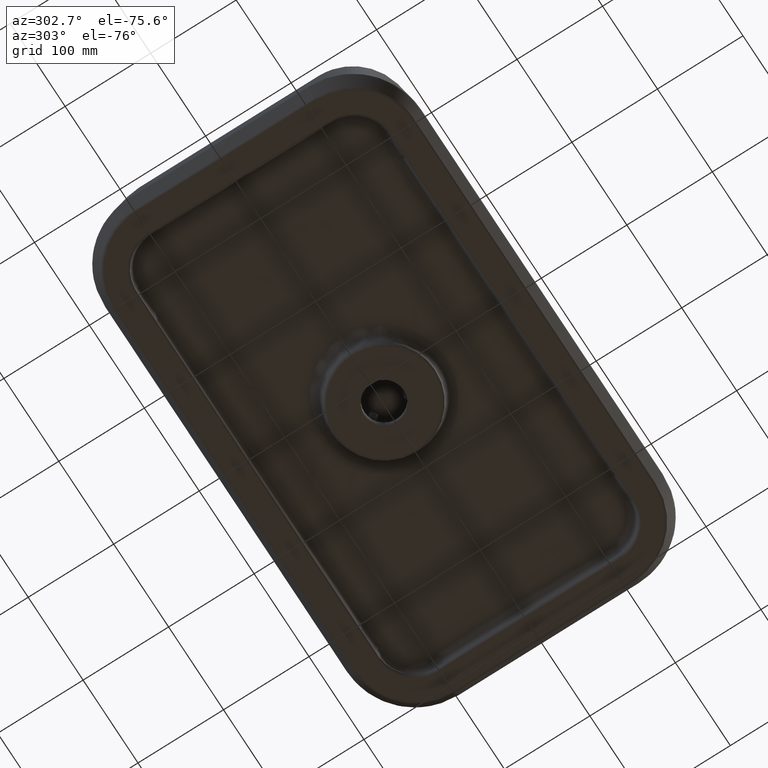
[diagram: clean part render]
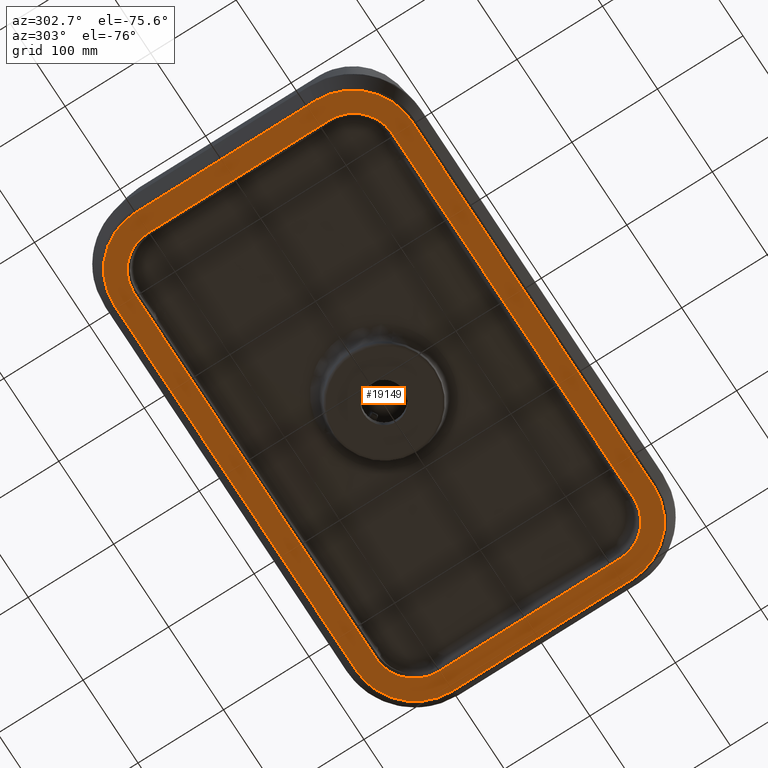
[diagram: same view with one face highlighted and labeled with its STEP entity id]
A machine part, auxiliary view. The second image highlights one B-rep face of the part: STEP entity #19149.
In plain terms, the highlighted planar face has unit normal (0, 0, -1).
Its self-contained STEP definition (entity closure, byte-faithful):
#5 = LINE ( 'NONE', #1615, #17222 ) ;
#6 = LINE ( 'NONE', #22890, #14060 ) ;
#140 = CARTESIAN_POINT ( 'NONE',  ( 613.7626360544778663, 305.0000000000000000, -20.00000000000000000 ) ) ;
#149 = EDGE_CURVE ( 'NONE', #7772, #927, #8166, .T. ) ;
#176 = CARTESIAN_POINT ( 'NONE',  ( 583.0147691637880598, 362.8739811818580847, -20.00000000000000000 ) ) ;
#183 = VERTEX_POINT ( 'NONE', #8693 ) ;
#206 = CARTESIAN_POINT ( 'NONE',  ( 56.03823013872320757, 46.03822808055880955, -20.00000000000000000 ) ) ;
#283 = LINE ( 'NONE', #5846, #23505 ) ;
#360 = CARTESIAN_POINT ( 'NONE',  ( 589.5839956566380806, 93.63527356781048638, -20.00000000000000355 ) ) ;
#365 = CARTESIAN_POINT ( 'NONE',  ( 545.4447451401179023, 350.5620847834420033, -20.00000000000000000 ) ) ;
#432 = LINE ( 'NONE', #4019, #12558 ) ;
#439 = CARTESIAN_POINT ( 'NONE',  ( 60.69477319976842722, 88.66360344336487742, -19.99999999999999289 ) ) ;
#481 = CARTESIAN_POINT ( 'NONE',  ( 558.3332692224628317, 348.5938984858630079, -20.00000000000000355 ) ) ;
#562 = CARTESIAN_POINT ( 'NONE',  ( 62.95099378957590375, 78.98278400710603364, -20.00000000000000355 ) ) ;
#599 = CARTESIAN_POINT ( 'NONE',  ( 103.4400332919218641, 49.45443826039982582, -20.00000000000000000 ) ) ;
#609 = CARTESIAN_POINT ( 'NONE',  ( 562.3386455256970748, 347.1381676650493091, -19.99999999999999289 ) ) ;
#676 = VECTOR ( 'NONE', #22454, 1000.000000000000000 ) ;
#696 = EDGE_CURVE ( 'NONE', #7826, #1888, #8471, .T. ) ;
#705 = CARTESIAN_POINT ( 'NONE',  ( 105.1823785617805527, 49.43701052263033802, -20.00000000000000000 ) ) ;
#768 = CARTESIAN_POINT ( 'NONE',  ( 74.57117323626754057, 338.6974198126209217, -19.99999999999999645 ) ) ;
#812 = VERTEX_POINT ( 'NONE', #24207 ) ;
#927 = VERTEX_POINT ( 'NONE', #4163 ) ;
#959 = VECTOR ( 'NONE', #5837, 1000.000000000000114 ) ;
#1101 = CARTESIAN_POINT ( 'NONE',  ( 547.1387985436019790, 49.48003336681029651, -20.00000000000000000 ) ) ;
#1129 = CARTESIAN_POINT ( 'NONE',  ( 572.1712172596033952, 58.55412363454011171, -19.99999999999999645 ) ) ;
#1249 = B_SPLINE_CURVE_WITH_KNOTS ( 'NONE', 3,
 ( #9352, #20732, #14568, #22590, #13189, #18396, #16546, #24080, #13810, #20977, #17526, #15552, #11837, #2427, #19369, #439, #21100, #4399, #22959, #6118, #562, #9980, #5990, #19244, #5750, #8115, #11959, #4025, #2301, #15678, #9594, #23214, #6249, #21232, #9856, #11577, #13681, #11453, #13313, #17271 ),
 .UNSPECIFIED., .F., .F.,
 ( 4, 1, 1, 1, 1, 1, 1, 2, 2, 2, 2, 2, 2, 2, 2, 2, 2, 2, 2, 2, 2, 2, 4 ),
 ( 0.0000000000000000000, 0.007812500000060999816, 0.01171875000009119441, 0.01367187500010587711, 0.01464843750011271019, 0.01513671875011555687, 0.01538085937511637045, 0.01550292968761677811, 0.01562500000011718404, 0.03125000000011544238, 0.06250000000011134149, 0.1250000000001037781, 0.1875000000000962008, 0.2500000000000886513, 0.3750000000000745515, 0.4375000000000671130, 0.5000000000000596190, 0.5625000000000521805, 0.6250000000000447420, 0.7500000000000303091, 0.8125000000000228706, 0.8750000000000155431, 1.000000000000000000 ),
 .UNSPECIFIED. ) ;
#1364 = CARTESIAN_POINT ( 'NONE',  ( 60.41589176227093105, 306.5257380026108649, -20.00000000000000355 ) ) ;
#1398 = DIRECTION ( 'NONE',  ( 1.000000000000000000, -0.0000000000000000000, 0.0000000000000000000 ) ) ;
#1439 = ORIENTED_EDGE ( 'NONE', *, *, #12215, .T. ) ;
#1493 = CARTESIAN_POINT ( 'NONE',  ( 575.4277908584463148, 61.30258015183713383, -19.99999999999999645 ) ) ;
#1615 = CARTESIAN_POINT ( 'NONE',  ( 36.23736394552250317, 24.32615316309999898, -20.00000000000000000 ) ) ;
#1640 = B_SPLINE_CURVE_WITH_KNOTS ( 'NONE', 3,
 ( #11701, #4020, #18989, #13309 ),
 .UNSPECIFIED., .F., .F.,
 ( 4, 4 ),
 ( 0.0000000000000000000, 1.000000000000000000 ),
 .UNSPECIFIED. ) ;
#1683 = VERTEX_POINT ( 'NONE', #11872 ) ;
#1724 = CARTESIAN_POINT ( 'NONE',  ( 60.41856827181106127, 306.7647217262994559, -20.00000000000000000 ) ) ;
#1888 = VERTEX_POINT ( 'NONE', #10625 ) ;
#1951 = VERTEX_POINT ( 'NONE', #17411 ) ;
#2034 = CARTESIAN_POINT ( 'NONE',  ( 557.9602275777641580, 372.9459035821819839, -20.00000000000000000 ) ) ;
#2223 = CARTESIAN_POINT ( 'NONE',  ( 589.5837868432029154, 93.59373228217225460, -20.00000000000000000 ) ) ;
#2301 = CARTESIAN_POINT ( 'NONE',  ( 74.57025903373428832, 61.30332191015848764, -20.00000000000000000 ) ) ;
#2321 = CARTESIAN_POINT ( 'NONE',  ( 104.5542184730190058, 49.43791479910009912, -20.00000000000000000 ) ) ;
#2348 = CARTESIAN_POINT ( 'NONE',  ( 572.1733394006009803, 341.4442451993540999, -19.99999999999999645 ) ) ;
#2427 = CARTESIAN_POINT ( 'NONE',  ( 60.47049181558218578, 91.50153117052238372, -19.99999999999999289 ) ) ;
#2472 = DIRECTION ( 'NONE',  ( -1.000000000000000000, 0.0000000000000000000, -0.0000000000000000000 ) ) ;
#2580 = CARTESIAN_POINT ( 'NONE',  ( 102.8599389428290038, 49.48005182034100358, -20.00000000000000000 ) ) ;
#2589 = CARTESIAN_POINT ( 'NONE',  ( 549.9914510293451713, 350.3940013736541914, -19.99999999999999645 ) ) ;
#2599 = B_SPLINE_CURVE_WITH_KNOTS ( 'NONE', 3,
 ( #8345, #4619, #20204, #16022, #23558, #10802, #23439, #6591, #14159, #22668, #3741 ),
 .UNSPECIFIED., .F., .F.,
 ( 4, 1, 1, 1, 1, 1, 1, 1, 4 ),
 ( 0.0000000000000000000, 0.1199897986799775135, 0.2399795973599529175, 0.3699897986836335195, 0.5000000000073141493, 0.6300102013236816845, 0.7600204026401397028, 0.8800102013200246098, 1.000000000000000000 ),
 .UNSPECIFIED. ) ;
#2714 = CARTESIAN_POINT ( 'NONE',  ( 589.5811555713996768, 306.7026026648503034, -20.00000000000000355 ) ) ;
#2923 = ORIENTED_EDGE ( 'NONE', *, *, #21751, .T. ) ;
#2965 = CARTESIAN_POINT ( 'NONE',  ( 60.41439796434210052, 199.9999997651979982, -20.00000000000000000 ) ) ;
#3026 = VECTOR ( 'NONE', #1398, 1000.000000000000000 ) ;
#3111 = CARTESIAN_POINT ( 'NONE',  ( 585.4873278487606285, 74.99639444750997086, -20.00000000000000355 ) ) ;
#3136 = CARTESIAN_POINT ( 'NONE',  ( 47.12601881814089921, 343.0147691637860135, -20.00000000000000000 ) ) ;
#3227 = CARTESIAN_POINT ( 'NONE',  ( 65.79680951384015941, 327.5380912044108186, -20.00000000000000000 ) ) ;
#3232 = CARTESIAN_POINT ( 'NONE',  ( 587.7298393776053445, 81.00394722196595865, -20.00000000000000355 ) ) ;
#3259 = LINE ( 'NONE', #9190, #3026 ) ;
#3467 = CARTESIAN_POINT ( 'NONE',  ( 60.41467822480342420, 306.0003904891459001, -20.00000000000000355 ) ) ;
#3580 = CARTESIAN_POINT ( 'NONE',  ( 60.41447967461999724, 305.6547173305320371, -20.00000000000000000 ) ) ;
#3702 = CARTESIAN_POINT ( 'NONE',  ( 60.41694552382184469, 306.6359322093080095, -19.99999999999999645 ) ) ;
#3713 = DIRECTION ( 'NONE',  ( -1.000000000000000000, 0.0000000000000000000, -0.0000000000000000000 ) ) ;
#3741 = CARTESIAN_POINT ( 'NONE',  ( 613.7626360544778663, 94.99999999999980105, -20.00000000000000000 ) ) ;
#3835 = CARTESIAN_POINT ( 'NONE',  ( 589.5839763197822094, 93.63101607499591239, -20.00000000000000000 ) ) ;
#3848 = EDGE_CURVE ( 'NONE', #13077, #24438, #8224, .T. ) ;
#3896 = EDGE_CURVE ( 'NONE', #8376, #17302, #2599, .T. ) ;
#4019 = CARTESIAN_POINT ( 'NONE',  ( 613.7626360544778663, 24.32615316309999898, -20.00000000000000000 ) ) ;
#4020 = CARTESIAN_POINT ( 'NONE',  ( 544.8065468622293110, 49.43697041884718857, -20.00000000000000000 ) ) ;
#4025 = CARTESIAN_POINT ( 'NONE',  ( 73.54397826831853990, 62.28893987878601024, -20.00000000000000000 ) ) ;
#4028 = EDGE_CURVE ( 'NONE', #14479, #7695, #13268, .T. ) ;
#4163 = CARTESIAN_POINT ( 'NONE',  ( 104.5547813967269946, 350.5620908997079823, -20.00000000000000000 ) ) ;
#4241 = CARTESIAN_POINT ( 'NONE',  ( 104.5547813967269946, 350.5620908997079823, -20.00000000000000000 ) ) ;
#4321 = CARTESIAN_POINT ( 'NONE',  ( 573.2871456177506388, 340.5637968229781904, -20.00000000000000355 ) ) ;
#4399 = CARTESIAN_POINT ( 'NONE',  ( 61.39588280572308321, 84.45018640027178947, -19.99999999999999645 ) ) ;
#4423 = CARTESIAN_POINT ( 'NONE',  ( 543.9059400888739901, 350.5632386922230808, -20.00000000000000000 ) ) ;
#4441 = CARTESIAN_POINT ( 'NONE',  ( 587.0479698923234082, 321.0172157027465119, -20.00000000000000000 ) ) ;
#4545 = ORIENTED_EDGE ( 'NONE', *, *, #7269, .T. ) ;
#4568 = ORIENTED_EDGE ( 'NONE', *, *, #149, .T. ) ;
#4619 = CARTESIAN_POINT ( 'NONE',  ( 549.3200908222941052, 26.23711227434399973, -20.00000000000000000 ) ) ;
#4678 = CARTESIAN_POINT ( 'NONE',  ( 588.2805517345620956, 316.9342701747619913, -19.99999999999999289 ) ) ;
#4794 = CARTESIAN_POINT ( 'NONE',  ( 547.1390246213589990, 350.5199477664450001, -20.00000000000000000 ) ) ;
#4856 = CARTESIAN_POINT ( 'NONE',  ( 36.23736394552242501, 304.9999999999989768, -20.00000000000000000 ) ) ;
#4951 = CARTESIAN_POINT ( 'NONE',  ( 80.15675713217193277, 343.0905024221627286, -20.00000000000000000 ) ) ;
#4956 = CARTESIAN_POINT ( 'NONE',  ( 547.1387985436019790, 49.48003336681029651, -20.00000000000000000 ) ) ;
#5076 = CARTESIAN_POINT ( 'NONE',  ( 579.3978508450660456, 65.39935756678306689, -20.00000000000001066 ) ) ;
#5188 = CARTESIAN_POINT ( 'NONE',  ( 60.42962908349420559, 307.3420075733504291, -19.99999999999999645 ) ) ;
#5193 = CARTESIAN_POINT ( 'NONE',  ( 564.9329804727343571, 54.04767584970393557, -20.00000000000000000 ) ) ;
#5225 = EDGE_CURVE ( 'NONE', #1888, #21067, #9645, .T. ) ;
#5235 = ORIENTED_EDGE ( 'NONE', *, *, #11636, .F. ) ;
#5310 = CARTESIAN_POINT ( 'NONE',  ( 60.54397161469027822, 309.5642800041508167, -19.99999999999999645 ) ) ;
#5317 = VERTEX_POINT ( 'NONE', #11167 ) ;
#5378 = CARTESIAN_POINT ( 'NONE',  ( 549.3201225636410072, 373.7629490522319884, -20.00000000000000000 ) ) ;
#5432 = CARTESIAN_POINT ( 'NONE',  ( 60.47488445004613311, 308.4996270138382783, -20.00000000000000355 ) ) ;
#5497 = CARTESIAN_POINT ( 'NONE',  ( 34.32615316309900777, 49.43676088892519971, -20.00000000000000000 ) ) ;
#5588 = DIRECTION ( 'NONE',  ( -9.812820980893993903E-06, 0.9999999999518542904, 0.0000000000000000000 ) ) ;
#5750 = CARTESIAN_POINT ( 'NONE',  ( 68.90995084144087457, 67.68314291164246299, -19.99999999999999645 ) ) ;
#5797 = CARTESIAN_POINT ( 'NONE',  ( 589.5413458917040543, 91.85355131502257109, -19.99999999999999645 ) ) ;
#5828 = CARTESIAN_POINT ( 'NONE',  ( 102.8601656069610186, 350.5199665108989961, -20.00000000000000000 ) ) ;
#5837 = DIRECTION ( 'NONE',  ( -7.733708421248975290E-07, -0.9999999999997009059, 0.0000000000000000000 ) ) ;
#5846 = CARTESIAN_POINT ( 'NONE',  ( 34.32615316309900777, 373.7626360544780368, -20.00000000000000000 ) ) ;
#5990 = CARTESIAN_POINT ( 'NONE',  ( 65.79581511898363999, 72.46363120402864411, -20.00000000000000355 ) ) ;
#6015 = CARTESIAN_POINT ( 'NONE',  ( 545.4447451401179023, 350.5620847834420033, -20.00000000000000000 ) ) ;
#6037 = CARTESIAN_POINT ( 'NONE',  ( 581.0890127959431766, 332.3168567829787889, -20.00000000000000000 ) ) ;
#6041 = CARTESIAN_POINT ( 'NONE',  ( 589.5693348935485574, 92.65799243432361720, -20.00000000000000355 ) ) ;
#6118 = CARTESIAN_POINT ( 'NONE',  ( 62.49562629189952645, 80.33289986533625893, -20.00000000000000000 ) ) ;
#6168 = CARTESIAN_POINT ( 'NONE',  ( 589.5675680610244171, 307.4330154708379723, -20.00000000000000355 ) ) ;
#6224 = DIRECTION ( 'NONE',  ( -1.000000000000000000, 0.0000000000000000000, -0.0000000000000000000 ) ) ;
#6249 = CARTESIAN_POINT ( 'NONE',  ( 83.76972260673596793, 54.64002062088189859, -20.00000000000000000 ) ) ;
#6269 = CARTESIAN_POINT ( 'NONE',  ( 545.3295200727761767, 350.5626044230095886, -20.00000000000000000 ) ) ;
#6410 = CARTESIAN_POINT ( 'NONE',  ( 568.6895927775644850, 343.9357313269997576, -20.00000000000000000 ) ) ;
#6522 = ORIENTED_EDGE ( 'NONE', *, *, #7513, .T. ) ;
#6591 = CARTESIAN_POINT ( 'NONE',  ( 609.2135692150501427, 69.19042335379131714, -20.00000000000000000 ) ) ;
#6633 = EDGE_CURVE ( 'NONE', #812, #14479, #12171, .T. ) ;
#6705 = CARTESIAN_POINT ( 'NONE',  ( 92.03977259367870545, 372.9459273471940151, -20.00000000000000000 ) ) ;
#6805 = CARTESIAN_POINT ( 'NONE',  ( 91.64462753136601236, 348.6591257687158532, -20.00000000000000000 ) ) ;
#6849 = B_SPLINE_CURVE_WITH_KNOTS ( 'NONE', 3,
 ( #24032, #9068, #6705, #6949, #21945, #23672, #3136, #24149, #12774, #14279, #4856 ),
 .UNSPECIFIED., .F., .F.,
 ( 4, 1, 1, 1, 1, 1, 1, 1, 4 ),
 ( 0.0000000000000000000, 0.1199897986799537269, 0.2399795973598990162, 0.3699897986762811231, 0.4999999999926716954, 0.6300102013163868531, 0.7600204026401009560, 0.8800102013200546969, 1.000000000000000000 ),
 .UNSPECIFIED. ) ;
#6926 = CARTESIAN_POINT ( 'NONE',  ( 584.2021545337493080, 72.46190878985117934, -20.00000000000000000 ) ) ;
#6930 = B_SPLINE_CURVE_WITH_KNOTS ( 'NONE', 3,
 ( #17323, #17451, #8174, #365 ),
 .UNSPECIFIED., .F., .F.,
 ( 4, 4 ),
 ( 0.0000000000000000000, 1.000000000000000000 ),
 .UNSPECIFIED. ) ;
#6949 = CARTESIAN_POINT ( 'NONE',  ( 79.19043508401730946, 369.2135466405110833, -20.00000000000000355 ) ) ;
#6996 = ORIENTED_EDGE ( 'NONE', *, *, #18691, .T. ) ;
#7039 = CARTESIAN_POINT ( 'NONE',  ( 68.85524087188710496, 332.3582380978734818, -20.00000000000000000 ) ) ;
#7138 = CARTESIAN_POINT ( 'NONE',  ( 545.4441827580590143, 49.43790897404760187, -20.00000000000000000 ) ) ;
#7159 = CARTESIAN_POINT ( 'NONE',  ( 60.41496831768338893, 306.3647264408321007, -20.00000000000000355 ) ) ;
#7164 = CARTESIAN_POINT ( 'NONE',  ( 576.4558058863591441, 62.29001059415378450, -20.00000000000000355 ) ) ;
#7269 = EDGE_CURVE ( 'NONE', #14812, #183, #21971, .T. ) ;
#7284 = CARTESIAN_POINT ( 'NONE',  ( 61.41286961462085259, 315.5470390496258801, -20.00000000000000355 ) ) ;
#7410 = CARTESIAN_POINT ( 'NONE',  ( 62.26912463703408918, 318.9960527840703435, -20.00000000000000000 ) ) ;
#7415 = CARTESIAN_POINT ( 'NONE',  ( 613.7626360544778663, 94.99999999999980105, -20.00000000000000000 ) ) ;
#7475 = CARTESIAN_POINT ( 'NONE',  ( 593.9617698600401354, 353.9617719205280650, -20.00000000000000000 ) ) ;
#7493 = VERTEX_POINT ( 'NONE', #11982 ) ;
#7513 = EDGE_CURVE ( 'NONE', #15937, #11312, #11934, .T. ) ;
#7530 = CARTESIAN_POINT ( 'NONE',  ( 60.43786937678639504, 307.6095695335503137, -20.00000000000000000 ) ) ;
#7531 = CARTESIAN_POINT ( 'NONE',  ( 589.5843592207321535, 305.9269435485420559, -19.99999999999999289 ) ) ;
#7535 = CARTESIAN_POINT ( 'NONE',  ( 589.5797558315437072, 93.18986185098968633, -20.00000000000000000 ) ) ;
#7561 = CARTESIAN_POINT ( 'NONE',  ( 36.23736394552242501, 304.9999999999989768, -20.00000000000000000 ) ) ;
#7653 = CARTESIAN_POINT ( 'NONE',  ( 589.5830722124749173, 93.47426200085570258, -20.00000000000000355 ) ) ;
#7687 = CARTESIAN_POINT ( 'NONE',  ( 103.4408550980522392, 350.5456033456010800, -20.00000000000000000 ) ) ;
#7695 = VERTEX_POINT ( 'NONE', #21472 ) ;
#7719 = CARTESIAN_POINT ( 'NONE',  ( 570.8095766458429807, 369.2135692153399873, -20.00000000000000000 ) ) ;
#7752 = CARTESIAN_POINT ( 'NONE',  ( 66.98523083832789382, 37.12601881663990611, -20.00000000000000000 ) ) ;
#7772 = VERTEX_POINT ( 'NONE', #13803 ) ;
#7783 = CARTESIAN_POINT ( 'NONE',  ( 589.5844842979349778, 94.34528267559710457, -20.00000000000000000 ) ) ;
#7826 = VERTEX_POINT ( 'NONE', #22951 ) ;
#7878 = CARTESIAN_POINT ( 'NONE',  ( 36.23711227434409921, 90.67990917770539738, -20.00000000000000355 ) ) ;
#7943 = B_SPLINE_CURVE_WITH_KNOTS ( 'NONE', 3,
 ( #18794, #7531, #13974, #9898, #11879, #21401, #2714, #19413, #23006, #23376, #19782, #21518, #6168, #15471, #13727, #8283, #15597, #8162, #4678, #19289, #4441, #10022, #19536, #12001, #6037, #17810, #13609, #21645, #12247, #4321, #2348, #6410, #23496, #609, #21275, #481, #14102, #9775, #2589, #10261 ),
 .UNSPECIFIED., .F., .F.,
 ( 4, 1, 1, 1, 1, 1, 1, 2, 2, 2, 2, 2, 2, 2, 2, 2, 2, 2, 2, 2, 2, 2, 4 ),
 ( 0.0000000000000000000, 0.007812500000136146303, 0.01171875000020422726, 0.01367187500023824519, 0.01464843750025521946, 0.01513671875026142283, 0.01538085937526701558, 0.01550292968776723242, 0.01562500000026744579, 0.03125000000026319918, 0.06250000000025469904, 0.1250000000002377265, 0.1875000000002207123, 0.2500000000002037259, 0.3750000000001697531, 0.4375000000001517675, 0.5000000000001337819, 0.5625000000001156852, 0.6250000000000976996, 0.7500000000000655032, 0.8125000000000490719, 0.8750000000000325295, 1.000000000000000000 ),
 .UNSPECIFIED. ) ;
#7976 = DIRECTION ( 'NONE',  ( 0.0000000000000000000, 1.000000000000000000, 0.0000000000000000000 ) ) ;
#8039 = EDGE_CURVE ( 'NONE', #11312, #7772, #6, .T. ) ;
#8115 = CARTESIAN_POINT ( 'NONE',  ( 70.65535708016415128, 65.44128534765191318, -20.00000000000000000 ) ) ;
#8153 = CARTESIAN_POINT ( 'NONE',  ( 104.5542184730190058, 49.43791479910009912, -20.00000000000000000 ) ) ;
#8162 = CARTESIAN_POINT ( 'NONE',  ( 588.6030808947995183, 315.5498133130188876, -19.99999999999999289 ) ) ;
#8166 = B_SPLINE_CURVE_WITH_KNOTS ( 'NONE', 3,
 ( #12892, #20430, #23783, #20305 ),
 .UNSPECIFIED., .F., .F.,
 ( 4, 4 ),
 ( 0.0000000000000000000, 1.000000000000000000 ),
 .UNSPECIFIED. ) ;
#8174 = CARTESIAN_POINT ( 'NONE',  ( 545.9941704568809655, 350.5596069967885455, -20.00000000000000000 ) ) ;
#8207 = VERTEX_POINT ( 'NONE', #13738 ) ;
#8224 = LINE ( 'NONE', #23065, #10780 ) ;
#8258 = CARTESIAN_POINT ( 'NONE',  ( 104.6694435422335374, 49.43739515935531159, -20.00000000000000000 ) ) ;
#8283 = CARTESIAN_POINT ( 'NONE',  ( 589.3041905133688942, 311.3363962707633732, -19.99999999999999289 ) ) ;
#8345 = CARTESIAN_POINT ( 'NONE',  ( 544.9999999999998863, 26.23736394552249962, -20.00000000000000000 ) ) ;
#8376 = VERTEX_POINT ( 'NONE', #18423 ) ;
#8471 = B_SPLINE_CURVE_WITH_KNOTS ( 'NONE', 3,
 ( #2580, #599, #15952, #8153 ),
 .UNSPECIFIED., .F., .F.,
 ( 4, 4 ),
 ( 0.0000000000000000000, 1.000000000000000000 ),
 .UNSPECIFIED. ) ;
#8552 = ORIENTED_EDGE ( 'NONE', *, *, #3848, .T. ) ;
#8556 = CARTESIAN_POINT ( 'NONE',  ( 88.95916743158805673, 347.7316639359318629, -19.99999999999999645 ) ) ;
#8693 = CARTESIAN_POINT ( 'NONE',  ( 547.1387985436019790, 49.48003336681029651, -20.00000000000000000 ) ) ;
#8799 = CARTESIAN_POINT ( 'NONE',  ( 77.82774684785191255, 341.4458763188806643, -20.00000000000000000 ) ) ;
#8805 = CARTESIAN_POINT ( 'NONE',  ( 570.4322356521729489, 57.31051475429733699, -19.99999999999999645 ) ) ;
#8926 = CARTESIAN_POINT ( 'NONE',  ( 569.8422069831518684, 56.90949752371609094, -20.00000000000000000 ) ) ;
#8961 = CARTESIAN_POINT ( 'NONE',  ( 543.9059400888739901, 350.5632386922230808, -20.00000000000000000 ) ) ;
#9039 = CARTESIAN_POINT ( 'NONE',  ( 60.41497375376729195, 306.3661197526193973, -20.00000000000000000 ) ) ;
#9068 = CARTESIAN_POINT ( 'NONE',  ( 100.6799091778560182, 373.7628877258579791, -20.00000000000000000 ) ) ;
#9154 = CARTESIAN_POINT ( 'NONE',  ( 61.73561803170227336, 316.9322972744836875, -20.00000000000000000 ) ) ;
#9190 = CARTESIAN_POINT ( 'NONE',  ( 34.32615316309900777, 26.23736394552249962, -20.00000000000000000 ) ) ;
#9223 = CARTESIAN_POINT ( 'NONE',  ( 609.2135466405111401, 330.8095649159820368, -20.00000000000000000 ) ) ;
#9273 = CARTESIAN_POINT ( 'NONE',  ( 60.41503030350416736, 306.3775982307288928, -19.99999999999999645 ) ) ;
#9341 = CARTESIAN_POINT ( 'NONE',  ( 612.9459273471950382, 317.9602274063209961, -20.00000000000000000 ) ) ;
#9352 = CARTESIAN_POINT ( 'NONE',  ( 60.41448015074009703, 94.34564890064839915, -20.00000000000000000 ) ) ;
#9594 = CARTESIAN_POINT ( 'NONE',  ( 77.82562420034946626, 58.55575446308452570, -19.99999999999999645 ) ) ;
#9645 = B_SPLINE_CURVE_WITH_KNOTS ( 'NONE', 3,
 ( #2321, #8258, #705, #9874 ),
 .UNSPECIFIED., .F., .F.,
 ( 4, 4 ),
 ( 0.0000000000000000000, 1.000000000000000000 ),
 .UNSPECIFIED. ) ;
#9706 = B_SPLINE_CURVE_WITH_KNOTS ( 'NONE', 3,
 ( #4956, #18450, #22046, #10541, #12878, #5193, #18089, #11017, #8926, #8805, #1129, #12523, #1493, #7164, #5076, #20064, #6926, #3111, #10660, #3232, #14737, #20418, #16359, #12641, #20178, #19046, #17070, #13119, #5797, #9781, #6041, #16833, #11509, #7535, #19166, #15352, #7653, #2223, #21031, #3835, #11252, #17319, #360, #22884, #20906, #15106, #7783 ),
 .UNSPECIFIED., .F., .F.,
 ( 4, 2, 2, 1, 2, 2, 2, 2, 2, 2, 1, 2, 2, 2, 2, 2, 1, 1, 2, 2, 1, 1, 2, 2, 1, 1, 1, 4 ),
 ( 0.0000000000000000000, 0.1249999999999664158, 0.2499999999999328315, 0.3124999999999160671, 0.3437499999999096834, 0.3749999999999033551, 0.4374999999998905875, 0.4999999999998778755, 0.6249999999998561151, 0.7499999999998344657, 0.8124999999998236966, 0.8437499999998179234, 0.8749999999998121503, 0.9374999999998007150, 0.9531249999997979394, 0.9687499999997952749, 0.9765624999997938316, 0.9804687499997930544, 0.9824218749997928324, 0.9843749999997924993, 0.9882812499997910560, 0.9892578124997907230, 0.9895019531247907230, 0.9896240234372908340, 0.9897460937497909450, 0.9902343749997983835, 0.9921874999998384625, 1.000000000000000000 ),
 .UNSPECIFIED. ) ;
#9775 = CARTESIAN_POINT ( 'NONE',  ( 552.8047247318719428, 349.9966576614177711, -19.99999999999999645 ) ) ;
#9780 = DIRECTION ( 'NONE',  ( 0.0000000000000000000, 0.0000000000000000000, -1.000000000000000000 ) ) ;
#9781 = CARTESIAN_POINT ( 'NONE',  ( 589.5610946010195903, 92.39043047394414998, -20.00000000000000000 ) ) ;
#9856 = CARTESIAN_POINT ( 'NONE',  ( 88.98013937367247195, 52.33359397645791233, -20.00000000000000000 ) ) ;
#9874 = CARTESIAN_POINT ( 'NONE',  ( 106.0930235316600090, 49.43676088892519971, -20.00000000000000000 ) ) ;
#9898 = CARTESIAN_POINT ( 'NONE',  ( 589.5825789296077346, 306.5345521937173885, -20.00000000000000000 ) ) ;
#9980 = CARTESIAN_POINT ( 'NONE',  ( 64.51123637092133833, 74.99702080492345146, -20.00000000000000000 ) ) ;
#10022 = CARTESIAN_POINT ( 'NONE',  ( 585.4877272954524869, 325.0029789027215656, -19.99999999999999289 ) ) ;
#10035 = VERTEX_POINT ( 'NONE', #18824 ) ;
#10261 = CARTESIAN_POINT ( 'NONE',  ( 547.1390246213589990, 350.5199477664450001, -20.00000000000000000 ) ) ;
#10509 = CARTESIAN_POINT ( 'NONE',  ( 545.9932371281006454, 49.44035506666305224, -20.00000000000000000 ) ) ;
#10535 = CARTESIAN_POINT ( 'NONE',  ( 102.8601656069610186, 350.5199665108989961, -20.00000000000000000 ) ) ;
#10541 = CARTESIAN_POINT ( 'NONE',  ( 558.3543366091050757, 51.34087413906539155, -20.00000000000000000 ) ) ;
#10625 = CARTESIAN_POINT ( 'NONE',  ( 104.5542184730190058, 49.43791479910009912, -20.00000000000000000 ) ) ;
#10660 = CARTESIAN_POINT ( 'NONE',  ( 587.0481808407457720, 78.98258719385461291, -19.99999999999999289 ) ) ;
#10668 = DIRECTION ( 'NONE',  ( 4.008296512735216306E-07, 0.9999999999999196199, 0.0000000000000000000 ) ) ;
#10771 = CARTESIAN_POINT ( 'NONE',  ( 62.95078318149495544, 321.0174128105569480, -20.00000000000000000 ) ) ;
#10780 = VECTOR ( 'NONE', #11819, 1000.000000000000227 ) ;
#10802 = CARTESIAN_POINT ( 'NONE',  ( 593.9617719194419578, 46.03823013872219860, -20.00000000000000000 ) ) ;
#10823 = EDGE_CURVE ( 'NONE', #7493, #10035, #14365, .T. ) ;
#11017 = CARTESIAN_POINT ( 'NONE',  ( 568.6469100348657548, 56.13843204660608421, -20.00000000000000000 ) ) ;
#11106 = CARTESIAN_POINT ( 'NONE',  ( 92.03977242265261793, 27.05409641760350326, -20.00000000000000000 ) ) ;
#11128 = CARTESIAN_POINT ( 'NONE',  ( 60.45761808765733747, 308.1464486915577368, -20.00000000000000000 ) ) ;
#11133 = EDGE_CURVE ( 'NONE', #18278, #5317, #19655, .T. ) ;
#11167 = CARTESIAN_POINT ( 'NONE',  ( 545.0000000000019327, 373.7626360544780368, -20.00000000000000000 ) ) ;
#11252 = CARTESIAN_POINT ( 'NONE',  ( 589.5839902205489125, 93.63388025405932069, -19.99999999999999645 ) ) ;
#11312 = VERTEX_POINT ( 'NONE', #8961 ) ;
#11453 = CARTESIAN_POINT ( 'NONE',  ( 97.19423883546086529, 50.00334193969286645, -19.99999999999999645 ) ) ;
#11509 = CARTESIAN_POINT ( 'NONE',  ( 589.5783707858084881, 93.10140588009753060, -19.99999999999999289 ) ) ;
#11546 = LINE ( 'NONE', #17234, #959 ) ;
#11577 = CARTESIAN_POINT ( 'NONE',  ( 91.66569435232794660, 51.40610113079876697, -20.00000000000000355 ) ) ;
#11636 = EDGE_CURVE ( 'NONE', #21426, #7493, #5, .T. ) ;
#11701 = CARTESIAN_POINT ( 'NONE',  ( 543.9054890495749532, 49.43676057434070259, -20.00000000000000000 ) ) ;
#11715 = ORIENTED_EDGE ( 'NONE', *, *, #11133, .F. ) ;
#11800 = EDGE_CURVE ( 'NONE', #14688, #15937, #6930, .T. ) ;
#11819 = DIRECTION ( 'NONE',  ( 7.778799200140098213E-07, -0.9999999999996973532, 0.0000000000000000000 ) ) ;
#11837 = CARTESIAN_POINT ( 'NONE',  ( 60.43139566291292653, 92.56698424296271810, -20.00000000000000355 ) ) ;
#11872 = CARTESIAN_POINT ( 'NONE',  ( 102.8601656069610186, 350.5199665108989961, -20.00000000000000000 ) ) ;
#11879 = CARTESIAN_POINT ( 'NONE',  ( 589.5818040112561675, 306.6383532054238117, -20.00000000000000355 ) ) ;
#11934 = B_SPLINE_CURVE_WITH_KNOTS ( 'NONE', 3,
 ( #6015, #6269, #13831, #4423 ),
 .UNSPECIFIED., .F., .F.,
 ( 4, 4 ),
 ( 0.0000000000000000000, 1.000000000000000000 ),
 .UNSPECIFIED. ) ;
#11959 = CARTESIAN_POINT ( 'NONE',  ( 71.58041415944714458, 64.36429268659819058, -20.00000000000000355 ) ) ;
#11982 = CARTESIAN_POINT ( 'NONE',  ( 36.23736394552251028, 94.99999999999917577, -20.00000000000000000 ) ) ;
#12001 = CARTESIAN_POINT ( 'NONE',  ( 581.9079049553827190, 331.1535318365944249, -20.00000000000000355 ) ) ;
#12124 = CARTESIAN_POINT ( 'NONE',  ( 589.5845656446385874, 297.2911071200040851, -20.00000000000000000 ) ) ;
#12171 = LINE ( 'NONE', #21935, #15236 ) ;
#12215 = EDGE_CURVE ( 'NONE', #17828, #14812, #1640, .T. ) ;
#12247 = CARTESIAN_POINT ( 'NONE',  ( 575.4287045781786674, 338.6966777636856136, -20.00000000000000000 ) ) ;
#12512 = EDGE_LOOP ( 'NONE', ( #16278, #11715, #16843, #21838, #18217, #14864, #5235, #22290 ) ) ;
#12516 = CARTESIAN_POINT ( 'NONE',  ( 79.56672846262847543, 342.6894851944985021, -19.99999999999999645 ) ) ;
#12523 = CARTESIAN_POINT ( 'NONE',  ( 573.2862604080200981, 59.43544397273090141, -19.99999999999999645 ) ) ;
#12558 = VECTOR ( 'NONE', #7976, 1000.000000000000000 ) ;
#12641 = CARTESIAN_POINT ( 'NONE',  ( 589.1157265182785068, 87.25297885265229070, -20.00000000000000000 ) ) ;
#12697 = ORIENTED_EDGE ( 'NONE', *, *, #11800, .T. ) ;
#12750 = CARTESIAN_POINT ( 'NONE',  ( 60.41495048443756133, 306.3571355091981445, -20.00000000000000000 ) ) ;
#12774 = CARTESIAN_POINT ( 'NONE',  ( 37.05409641781660213, 317.9602275777609748, -20.00000000000000000 ) ) ;
#12873 = CARTESIAN_POINT ( 'NONE',  ( 60.42287501673750683, 307.0313877860242542, -20.00000000000000000 ) ) ;
#12878 = CARTESIAN_POINT ( 'NONE',  ( 561.0397967064209297, 52.26833598100068201, -20.00000000000000355 ) ) ;
#12892 = CARTESIAN_POINT ( 'NONE',  ( 106.0934751056229999, 350.5632392236714168, -20.00000000000000000 ) ) ;
#12994 = CARTESIAN_POINT ( 'NONE',  ( 60.41517713122001254, 306.4062677234985586, -19.99999999999999645 ) ) ;
#13055 = LINE ( 'NONE', #5497, #676 ) ;
#13077 = VERTEX_POINT ( 'NONE', #2965 ) ;
#13114 = CARTESIAN_POINT ( 'NONE',  ( 60.41485607046254103, 306.2751458931318211, -19.99999999999999645 ) ) ;
#13119 = CARTESIAN_POINT ( 'NONE',  ( 589.5240795303781169, 91.50037299353203935, -20.00000000000000355 ) ) ;
#13189 = CARTESIAN_POINT ( 'NONE',  ( 60.41715971474377511, 93.36164650904109408, -20.00000000000000000 ) ) ;
#13208 = CARTESIAN_POINT ( 'NONE',  ( 40.78645335917489945, 69.19043508411022003, -20.00000000000000000 ) ) ;
#13268 = LINE ( 'NONE', #18590, #14740 ) ;
#13270 = CARTESIAN_POINT ( 'NONE',  ( 104.0057270279742454, 350.5596448085374277, -20.00000000000000000 ) ) ;
#13309 = CARTESIAN_POINT ( 'NONE',  ( 545.4441827580590143, 49.43790897404760187, -20.00000000000000000 ) ) ;
#13313 = CARTESIAN_POINT ( 'NONE',  ( 100.0075125360225883, 49.60599822003060666, -19.99999999999999645 ) ) ;
#13362 = FACE_OUTER_BOUND ( 'NONE', #12512, .T. ) ;
#13576 = EDGE_CURVE ( 'NONE', #24438, #7826, #1249, .T. ) ;
#13609 = CARTESIAN_POINT ( 'NONE',  ( 578.4185494670422258, 335.6357069963552817, -20.00000000000000000 ) ) ;
#13681 = CARTESIAN_POINT ( 'NONE',  ( 93.03305734398547600, 51.00645349914523052, -19.99999999999999645 ) ) ;
#13727 = CARTESIAN_POINT ( 'NONE',  ( 589.4851931261890741, 309.2091040891844500, -20.00000000000000000 ) ) ;
#13738 = CARTESIAN_POINT ( 'NONE',  ( 105.0000000000000000, 373.7626360544780368, -20.00000000000000000 ) ) ;
#13803 = CARTESIAN_POINT ( 'NONE',  ( 106.0934751056229999, 350.5632392236714168, -20.00000000000000000 ) ) ;
#13810 = CARTESIAN_POINT ( 'NONE',  ( 60.41797106560070318, 93.28382285291601761, -20.00000000000000000 ) ) ;
#13831 = CARTESIAN_POINT ( 'NONE',  ( 544.8165850556948726, 350.5629890592699098, -20.00000000000000000 ) ) ;
#13834 = ORIENTED_EDGE ( 'NONE', *, *, #696, .T. ) ;
#13974 = CARTESIAN_POINT ( 'NONE',  ( 589.5838213327399444, 306.2647728018299063, -20.00000000000000000 ) ) ;
#13990 = EDGE_LOOP ( 'NONE', ( #2923, #17415, #8552, #23693, #13834, #19701, #6996, #1439, #4545, #17148, #22955, #22277, #19519, #12697, #6522, #19685, #4568, #23898 ) ) ;
#14060 = VECTOR ( 'NONE', #3713, 1000.000000000000000 ) ;
#14102 = CARTESIAN_POINT ( 'NONE',  ( 556.9659062274733969, 348.9935461138953769, -20.00000000000000355 ) ) ;
#14159 = CARTESIAN_POINT ( 'NONE',  ( 612.9459035823971362, 82.03977242265189318, -20.00000000000000000 ) ) ;
#14219 = EDGE_CURVE ( 'NONE', #8207, #21426, #6849, .T. ) ;
#14279 = CARTESIAN_POINT ( 'NONE',  ( 36.23705094776990876, 309.3201225636400409, -20.00000000000000000 ) ) ;
#14339 = CARTESIAN_POINT ( 'NONE',  ( 106.0930235316600090, 49.43676088892519971, -20.00000000000000000 ) ) ;
#14365 = B_SPLINE_CURVE_WITH_KNOTS ( 'NONE', 3,
 ( #22733, #7878, #17160, #13208, #19136, #206, #7752, #18770, #11106, #20880, #22490 ),
 .UNSPECIFIED., .F., .F.,
 ( 4, 1, 1, 1, 1, 1, 1, 1, 4 ),
 ( 0.0000000000000000000, 0.1199897986799537269, 0.2399795973599074539, 0.3699897986836131469, 0.5000000000073272499, 0.6300102013237093290, 0.7600204026401009560, 0.8800102013200462592, 1.000000000000000000 ),
 .UNSPECIFIED. ) ;
#14374 = CARTESIAN_POINT ( 'NONE',  ( 83.17060725404436994, 344.9736780572353609, -20.00000000000000355 ) ) ;
#14479 = VERTEX_POINT ( 'NONE', #12124 ) ;
#14568 = CARTESIAN_POINT ( 'NONE',  ( 60.41514239418262378, 93.73522691288938802, -20.00000000000000000 ) ) ;
#14612 = CARTESIAN_POINT ( 'NONE',  ( 60.41497222022714908, 306.3657655631032526, -19.99999999999999645 ) ) ;
#14688 = VERTEX_POINT ( 'NONE', #4794 ) ;
#14737 = CARTESIAN_POINT ( 'NONE',  ( 588.2633459757651053, 83.06770273248559988, -20.00000000000000000 ) ) ;
#14740 = VECTOR ( 'NONE', #5588, 1000.000000000000114 ) ;
#14812 = VERTEX_POINT ( 'NONE', #21337 ) ;
#14858 = CARTESIAN_POINT ( 'NONE',  ( 60.69463038938522459, 311.3356809711638107, -20.00000000000000355 ) ) ;
#14864 = ORIENTED_EDGE ( 'NONE', *, *, #10823, .F. ) ;
#15106 = CARTESIAN_POINT ( 'NONE',  ( 589.5842857486926505, 93.99960953551081388, -20.00000000000000000 ) ) ;
#15236 = VECTOR ( 'NONE', #10668, 1000.000000000000114 ) ;
#15294 = CARTESIAN_POINT ( 'NONE',  ( 602.8739843174399766, 343.0147516497120250, -20.00000000000000000 ) ) ;
#15308 = AXIS2_PLACEMENT_3D ( 'NONE', #15601, #9780, #2472 ) ;
#15352 = CARTESIAN_POINT ( 'NONE',  ( 589.5820184512431297, 93.36406779497374941, -20.00000000000000355 ) ) ;
#15471 = CARTESIAN_POINT ( 'NONE',  ( 589.5284719054697007, 308.4984685452581061, -19.99999999999999289 ) ) ;
#15552 = CARTESIAN_POINT ( 'NONE',  ( 60.42257581205326034, 92.92318993902810575, -20.00000000000000000 ) ) ;
#15597 = CARTESIAN_POINT ( 'NONE',  ( 589.1159831961580267, 312.7448155364862146, -20.00000000000000000 ) ) ;
#15601 = CARTESIAN_POINT ( 'NONE',  ( 34.32615316309900777, 24.32615316309999898, -20.00000000000000000 ) ) ;
#15678 = CARTESIAN_POINT ( 'NONE',  ( 76.71181798652574457, 59.43620284346048521, -19.99999999999999645 ) ) ;
#15937 = VERTEX_POINT ( 'NONE', #24420 ) ;
#15952 = CARTESIAN_POINT ( 'NONE',  ( 104.0047931353185220, 49.44039258665284819, -20.00000000000000000 ) ) ;
#16022 = CARTESIAN_POINT ( 'NONE',  ( 570.8095649158891547, 30.78645335917430259, -20.00000000000000000 ) ) ;
#16153 = CARTESIAN_POINT ( 'NONE',  ( 543.9054890495749532, 49.43676057434070259, -20.00000000000000000 ) ) ;
#16278 = ORIENTED_EDGE ( 'NONE', *, *, #24313, .F. ) ;
#16359 = CARTESIAN_POINT ( 'NONE',  ( 588.7313249723446233, 85.15203708958468098, -20.00000000000000000 ) ) ;
#16546 = CARTESIAN_POINT ( 'NONE',  ( 60.41780815443494390, 93.29739704942699063, -20.00000000000000355 ) ) ;
#16587 = CARTESIAN_POINT ( 'NONE',  ( 60.88323747424707477, 312.7470211484689457, -19.99999999999999645 ) ) ;
#16594 = EDGE_CURVE ( 'NONE', #7695, #14688, #7943, .T. ) ;
#16833 = CARTESIAN_POINT ( 'NONE',  ( 589.5760889594394030, 92.96861222137421521, -20.00000000000000355 ) ) ;
#16839 = DIRECTION ( 'NONE',  ( -0.0000000000000000000, -1.000000000000000000, -0.0000000000000000000 ) ) ;
#16843 = ORIENTED_EDGE ( 'NONE', *, *, #20368, .F. ) ;
#16917 = EDGE_CURVE ( 'NONE', #10035, #8376, #3259, .T. ) ;
#16951 = EDGE_CURVE ( 'NONE', #927, #1683, #19431, .T. ) ;
#17013 = CARTESIAN_POINT ( 'NONE',  ( 545.0000000000019327, 373.7626360544780368, -20.00000000000000000 ) ) ;
#17070 = CARTESIAN_POINT ( 'NONE',  ( 589.4808625027004609, 90.79036267881922129, -20.00000000000000000 ) ) ;
#17148 = ORIENTED_EDGE ( 'NONE', *, *, #17258, .T. ) ;
#17160 = CARTESIAN_POINT ( 'NONE',  ( 37.05407265302469710, 82.03977259349461804, -20.00000000000000000 ) ) ;
#17222 = VECTOR ( 'NONE', #16839, 1000.000000000000000 ) ;
#17234 = CARTESIAN_POINT ( 'NONE',  ( 60.41447967461999724, 305.6547173305320371, -20.00000000000000000 ) ) ;
#17258 = EDGE_CURVE ( 'NONE', #183, #812, #9706, .T. ) ;
#17271 = CARTESIAN_POINT ( 'NONE',  ( 102.8599389428290038, 49.48005182034100358, -20.00000000000000000 ) ) ;
#17302 = VERTEX_POINT ( 'NONE', #7415 ) ;
#17319 = CARTESIAN_POINT ( 'NONE',  ( 589.5839917540907891, 93.63423444414141272, -19.99999999999999289 ) ) ;
#17323 = CARTESIAN_POINT ( 'NONE',  ( 547.1390246213589990, 350.5199477664450001, -20.00000000000000000 ) ) ;
#17411 = CARTESIAN_POINT ( 'NONE',  ( 60.41447967461999724, 305.6547173305320371, -20.00000000000000000 ) ) ;
#17415 = ORIENTED_EDGE ( 'NONE', *, *, #22642, .T. ) ;
#17451 = CARTESIAN_POINT ( 'NONE',  ( 546.5589302839613310, 350.5455613244561732, -20.00000000000000000 ) ) ;
#17526 = CARTESIAN_POINT ( 'NONE',  ( 60.41800165213246032, 93.28134770334192183, -19.99999999999999645 ) ) ;
#17727 = CARTESIAN_POINT ( 'NONE',  ( 76.71270369492793861, 340.5645559841306635, -20.00000000000000000 ) ) ;
#17810 = CARTESIAN_POINT ( 'NONE',  ( 579.3436065483082302, 334.5587143411310080, -20.00000000000000000 ) ) ;
#17828 = VERTEX_POINT ( 'NONE', #16153 ) ;
#18061 = CARTESIAN_POINT ( 'NONE',  ( 546.5581090566150806, 49.45439653091728616, -20.00000000000000000 ) ) ;
#18085 = CARTESIAN_POINT ( 'NONE',  ( 100.0093691802857307, 350.3941068253336653, -20.00000000000000000 ) ) ;
#18089 = CARTESIAN_POINT ( 'NONE',  ( 566.8283568689820413, 55.02632187782669604, -20.00000000000000000 ) ) ;
#18217 = ORIENTED_EDGE ( 'NONE', *, *, #16917, .F. ) ;
#18278 = VERTEX_POINT ( 'NONE', #140 ) ;
#18324 = CARTESIAN_POINT ( 'NONE',  ( 64.51163618925538401, 325.0036055527301642, -19.99999999999999645 ) ) ;
#18396 = CARTESIAN_POINT ( 'NONE',  ( 60.41758560300226577, 93.31751817412731498, -20.00000000000000000 ) ) ;
#18423 = CARTESIAN_POINT ( 'NONE',  ( 544.9999999999998863, 26.23736394552249962, -20.00000000000000000 ) ) ;
#18450 = CARTESIAN_POINT ( 'NONE',  ( 549.9895949687806933, 49.60589305904599655, -20.00000000000000355 ) ) ;
#18590 = CARTESIAN_POINT ( 'NONE',  ( 589.5845656446390421, 297.2911071200040851, -20.00000000000000000 ) ) ;
#18671 = CARTESIAN_POINT ( 'NONE',  ( 60.42059319000268403, 306.8985941270786384, -19.99999999999999645 ) ) ;
#18691 = EDGE_CURVE ( 'NONE', #21067, #17828, #13055, .T. ) ;
#18770 = CARTESIAN_POINT ( 'NONE',  ( 79.19042335379191400, 30.78643078495069929, -20.00000000000000000 ) ) ;
#18794 = CARTESIAN_POINT ( 'NONE',  ( 589.5844835776258606, 305.6543508132269835, -20.00000000000000000 ) ) ;
#18824 = CARTESIAN_POINT ( 'NONE',  ( 105.0000000000009948, 26.23736394552310003, -20.00000000000000000 ) ) ;
#18989 = CARTESIAN_POINT ( 'NONE',  ( 545.3194447650573693, 49.43735325370332845, -20.00000000000000000 ) ) ;
#19046 = CARTESIAN_POINT ( 'NONE',  ( 589.4549923688141462, 90.43572000348243023, -19.99999999999999645 ) ) ;
#19136 = CARTESIAN_POINT ( 'NONE',  ( 47.12601568416459941, 56.98524834837869690, -20.00000000000000000 ) ) ;
#19149 = ADVANCED_FACE ( 'NONE', ( #19165, #13362 ), #20905, .T. ) ;
#19165 = FACE_BOUND ( 'NONE', #13990, .T. ) ;
#19166 = CARTESIAN_POINT ( 'NONE',  ( 589.5803957036480369, 93.23527828175809873, -19.99999999999999645 ) ) ;
#19244 = CARTESIAN_POINT ( 'NONE',  ( 68.09105868707769105, 68.84646785998133112, -19.99999999999999289 ) ) ;
#19289 = CARTESIAN_POINT ( 'NONE',  ( 587.5033373949692077, 319.6670998452017329, -20.00000000000000000 ) ) ;
#19369 = CARTESIAN_POINT ( 'NONE',  ( 60.51377059299290551, 90.79089562589581419, -20.00000000000000000 ) ) ;
#19413 = CARTESIAN_POINT ( 'NONE',  ( 589.5810418938322073, 306.7121774664749978, -20.00000000000000000 ) ) ;
#19431 = B_SPLINE_CURVE_WITH_KNOTS ( 'NONE', 3,
 ( #4241, #13270, #7687, #5828 ),
 .UNSPECIFIED., .F., .F.,
 ( 4, 4 ),
 ( 0.0000000000000000000, 1.000000000000000000 ),
 .UNSPECIFIED. ) ;
#19519 = ORIENTED_EDGE ( 'NONE', *, *, #16594, .T. ) ;
#19536 = CARTESIAN_POINT ( 'NONE',  ( 584.2031485405681224, 327.5363684955162284, -20.00000000000000355 ) ) ;
#19655 = B_SPLINE_CURVE_WITH_KNOTS ( 'NONE', 3,
 ( #22340, #24430, #9341, #9223, #15294, #7475, #176, #7719, #2034, #5378, #17013 ),
 .UNSPECIFIED., .F., .F.,
 ( 4, 1, 1, 1, 1, 1, 1, 1, 4 ),
 ( 0.0000000000000000000, 0.1199897986799506877, 0.2399795973599022914, 0.3699897986762876734, 0.4999999999926730276, 0.6300102013163835224, 0.7600204026400949608, 0.8800102013200493678, 1.000000000000000000 ),
 .UNSPECIFIED. ) ;
#19685 = ORIENTED_EDGE ( 'NONE', *, *, #8039, .T. ) ;
#19689 = CARTESIAN_POINT ( 'NONE',  ( 85.06598365518111393, 345.9523240791889975, -20.00000000000000000 ) ) ;
#19701 = ORIENTED_EDGE ( 'NONE', *, *, #5225, .T. ) ;
#19782 = CARTESIAN_POINT ( 'NONE',  ( 589.5809620736598617, 306.7186520108510877, -20.00000000000000000 ) ) ;
#20064 = CARTESIAN_POINT ( 'NONE',  ( 581.1437231977399733, 67.64176189027232056, -20.00000000000000355 ) ) ;
#20178 = CARTESIAN_POINT ( 'NONE',  ( 589.3043335991487766, 88.66431903689648664, -19.99999999999999645 ) ) ;
#20204 = CARTESIAN_POINT ( 'NONE',  ( 557.9602274065050551, 27.05407265302450170, -20.00000000000000000 ) ) ;
#20305 = CARTESIAN_POINT ( 'NONE',  ( 104.5547813967269946, 350.5620908997079823, -20.00000000000000000 ) ) ;
#20368 = EDGE_CURVE ( 'NONE', #17302, #18278, #432, .T. ) ;
#20412 = CARTESIAN_POINT ( 'NONE',  ( 60.41920814402470086, 306.8101381560152277, -20.00000000000000000 ) ) ;
#20418 = CARTESIAN_POINT ( 'NONE',  ( 588.5860943881605181, 84.45296095781169754, -20.00000000000000711 ) ) ;
#20430 = CARTESIAN_POINT ( 'NONE',  ( 105.1924172917465370, 350.5630294534254290, -20.00000000000000000 ) ) ;
#20528 = CARTESIAN_POINT ( 'NONE',  ( 60.41498765454148412, 306.3689839316048165, -19.99999999999999645 ) ) ;
#20732 = CARTESIAN_POINT ( 'NONE',  ( 60.41460450699323559, 94.07305616579212426, -19.99999999999999645 ) ) ;
#20880 = CARTESIAN_POINT ( 'NONE',  ( 100.6798774361609929, 26.23705094786809866, -20.00000000000000000 ) ) ;
#20905 = PLANE ( 'NONE',  #15308 ) ;
#20906 = CARTESIAN_POINT ( 'NONE',  ( 589.5841079037402324, 93.72485413744317384, -20.00000000000000000 ) ) ;
#20977 = CARTESIAN_POINT ( 'NONE',  ( 60.41800400238910385, 93.28117972114412737, -20.00000000000001066 ) ) ;
#21031 = CARTESIAN_POINT ( 'NONE',  ( 589.5839336708423843, 93.62240177564883936, -19.99999999999999645 ) ) ;
#21067 = VERTEX_POINT ( 'NONE', #14339 ) ;
#21100 = CARTESIAN_POINT ( 'NONE',  ( 60.88298051252115073, 87.25518417901612622, -20.00000000000000000 ) ) ;
#21232 = CARTESIAN_POINT ( 'NONE',  ( 87.66031805439816083, 52.86183196401685791, -20.00000000000000000 ) ) ;
#21275 = CARTESIAN_POINT ( 'NONE',  ( 561.0188242048675420, 347.6664056483513718, -20.00000000000000000 ) ) ;
#21337 = CARTESIAN_POINT ( 'NONE',  ( 545.4441827580590143, 49.43790897404760187, -20.00000000000000000 ) ) ;
#21401 = CARTESIAN_POINT ( 'NONE',  ( 589.5813781228844164, 306.6824815402179638, -19.99999999999999645 ) ) ;
#21426 = VERTEX_POINT ( 'NONE', #7561 ) ;
#21472 = CARTESIAN_POINT ( 'NONE',  ( 589.5844835776258606, 305.6543508132269835, -20.00000000000000000 ) ) ;
#21518 = CARTESIAN_POINT ( 'NONE',  ( 589.5763879127547398, 307.0768097765204061, -20.00000000000000000 ) ) ;
#21552 = CARTESIAN_POINT ( 'NONE',  ( 73.54315820714745655, 337.7099893771355710, -19.99999999999999645 ) ) ;
#21645 = CARTESIAN_POINT ( 'NONE',  ( 576.4549853480369848, 337.7110597983609068, -19.99999999999999289 ) ) ;
#21751 = EDGE_CURVE ( 'NONE', #1683, #1951, #24052, .T. ) ;
#21838 = ORIENTED_EDGE ( 'NONE', *, *, #3896, .F. ) ;
#21918 = CARTESIAN_POINT ( 'NONE',  ( 81.35205408350756784, 343.8615678949082053, -20.00000000000000000 ) ) ;
#21935 = CARTESIAN_POINT ( 'NONE',  ( 589.5844842979349778, 94.34528267559710457, -20.00000000000000000 ) ) ;
#21945 = CARTESIAN_POINT ( 'NONE',  ( 66.98524835028669600, 362.8739843174390103, -20.00000000000000000 ) ) ;
#21971 = B_SPLINE_CURVE_WITH_KNOTS ( 'NONE', 3,
 ( #7138, #10509, #18061, #1101 ),
 .UNSPECIFIED., .F., .F.,
 ( 4, 4 ),
 ( 0.0000000000000000000, 1.000000000000000000 ),
 .UNSPECIFIED. ) ;
#22046 = CARTESIAN_POINT ( 'NONE',  ( 552.8028747550653179, 50.00323625737404853, -20.00000000000000000 ) ) ;
#22155 = CARTESIAN_POINT ( 'NONE',  ( 70.60111323087038215, 334.6006424100189065, -19.99999999999999645 ) ) ;
#22271 = CARTESIAN_POINT ( 'NONE',  ( 61.26763902875010359, 314.8479629213676390, -20.00000000000000000 ) ) ;
#22277 = ORIENTED_EDGE ( 'NONE', *, *, #4028, .T. ) ;
#22290 = ORIENTED_EDGE ( 'NONE', *, *, #14219, .F. ) ;
#22340 = CARTESIAN_POINT ( 'NONE',  ( 613.7626360544778663, 305.0000000000000000, -20.00000000000000000 ) ) ;
#22395 = CARTESIAN_POINT ( 'NONE',  ( 60.51810147978584098, 309.2096373287272399, -20.00000000000000000 ) ) ;
#22454 = DIRECTION ( 'NONE',  ( 1.000000000000000000, -0.0000000000000000000, 0.0000000000000000000 ) ) ;
#22490 = CARTESIAN_POINT ( 'NONE',  ( 105.0000000000009948, 26.23736394552310003, -20.00000000000000000 ) ) ;
#22590 = CARTESIAN_POINT ( 'NONE',  ( 60.41638479665387962, 93.46544752092088970, -20.00000000000000711 ) ) ;
#22642 = EDGE_CURVE ( 'NONE', #1951, #13077, #11546, .T. ) ;
#22668 = CARTESIAN_POINT ( 'NONE',  ( 613.7629490521329672, 90.67987743616031082, -20.00000000000000000 ) ) ;
#22733 = CARTESIAN_POINT ( 'NONE',  ( 36.23736394552251028, 94.99999999999917577, -20.00000000000000000 ) ) ;
#22884 = CARTESIAN_POINT ( 'NONE',  ( 589.5840134898912765, 93.64286450496248904, -20.00000000000000000 ) ) ;
#22890 = CARTESIAN_POINT ( 'NONE',  ( 34.32615316309900777, 350.5632386922230808, -20.00000000000000000 ) ) ;
#22951 = CARTESIAN_POINT ( 'NONE',  ( 102.8599389428290038, 49.48005182034100358, -20.00000000000000000 ) ) ;
#22955 = ORIENTED_EDGE ( 'NONE', *, *, #6633, .T. ) ;
#22959 = CARTESIAN_POINT ( 'NONE',  ( 61.71841196159877541, 83.06572953753580180, -19.99999999999999289 ) ) ;
#23006 = CARTESIAN_POINT ( 'NONE',  ( 589.5809926601980351, 306.7161768613090658, -20.00000000000000000 ) ) ;
#23065 = CARTESIAN_POINT ( 'NONE',  ( 60.41439796434210052, 199.9999997651979982, -20.00000000000000000 ) ) ;
#23214 = CARTESIAN_POINT ( 'NONE',  ( 81.30937081607278571, 56.06426832162538432, -20.00000000000000355 ) ) ;
#23376 = CARTESIAN_POINT ( 'NONE',  ( 589.5809597234027706, 306.7188199930702126, -19.99999999999999645 ) ) ;
#23439 = CARTESIAN_POINT ( 'NONE',  ( 602.8739811833610247, 56.98523083832809988, -20.00000000000000000 ) ) ;
#23496 = CARTESIAN_POINT ( 'NONE',  ( 566.2292409770680024, 345.3599790215049552, -20.00000000000000000 ) ) ;
#23505 = VECTOR ( 'NONE', #6224, 1000.000000000000000 ) ;
#23558 = CARTESIAN_POINT ( 'NONE',  ( 583.0147516516210544, 37.12601568416400255, -20.00000000000000000 ) ) ;
#23672 = CARTESIAN_POINT ( 'NONE',  ( 56.03822807947110363, 353.9617698600390554, -20.00000000000000000 ) ) ;
#23693 = ORIENTED_EDGE ( 'NONE', *, *, #13576, .T. ) ;
#23765 = CARTESIAN_POINT ( 'NONE',  ( 97.19608939209565790, 349.9967636344533730, -20.00000000000000000 ) ) ;
#23783 = CARTESIAN_POINT ( 'NONE',  ( 104.6795193887812019, 350.5626466197210789, -20.00000000000000000 ) ) ;
#23898 = ORIENTED_EDGE ( 'NONE', *, *, #16951, .T. ) ;
#23909 = CARTESIAN_POINT ( 'NONE',  ( 60.41448015074009703, 94.34564890064839915, -20.00000000000000000 ) ) ;
#24032 = CARTESIAN_POINT ( 'NONE',  ( 105.0000000000000000, 373.7626360544780368, -20.00000000000000000 ) ) ;
#24052 = B_SPLINE_CURVE_WITH_KNOTS ( 'NONE', 3,
 ( #10535, #18085, #23765, #6805, #8556, #19689, #14374, #21918, #4951, #12516, #8799, #17727, #768, #21552, #22155, #7039, #3227, #18324, #10771, #7410, #9154, #7284, #22271, #16587, #14858, #5310, #22395, #5432, #11128, #7530, #5188, #12873, #18671, #20412, #1724, #3702, #1364, #12994, #9273, #20528, #9039, #14612, #7159, #12750, #13114, #3467, #3580 ),
 .UNSPECIFIED., .F., .F.,
 ( 4, 2, 2, 1, 2, 2, 2, 2, 2, 2, 1, 2, 2, 2, 2, 2, 1, 1, 2, 2, 1, 1, 2, 2, 1, 1, 1, 4 ),
 ( 0.0000000000000000000, 0.1250000000000790479, 0.2500000000001580958, 0.3125000000001976197, 0.3437500000002171041, 0.3750000000002365885, 0.4375000000002755574, 0.5000000000003145262, 0.6250000000003911316, 0.7500000000004677370, 0.8125000000005060397, 0.8437500000005240253, 0.8750000000005420109, 0.9375000000005779821, 0.9531250000005864198, 0.9687500000005948575, 0.9765625000005989653, 0.9804687500006011858, 0.9824218750006021850, 0.9843750000006031842, 0.9882812500006077361, 0.9892578125006082912, 0.9895019531256096235, 0.9896240234381102896, 0.9897460937506109557, 0.9902343750005850875, 0.9921875000004680700, 1.000000000000000000 ),
 .UNSPECIFIED. ) ;
#24080 = CARTESIAN_POINT ( 'NONE',  ( 60.41792183197711807, 93.28782224776590226, -20.00000000000000355 ) ) ;
#24149 = CARTESIAN_POINT ( 'NONE',  ( 40.78643078465930927, 330.8095766458419575, -20.00000000000000355 ) ) ;
#24207 = CARTESIAN_POINT ( 'NONE',  ( 589.5844842979349778, 94.34528267559710457, -20.00000000000000000 ) ) ;
#24313 = EDGE_CURVE ( 'NONE', #5317, #8207, #283, .T. ) ;
#24420 = CARTESIAN_POINT ( 'NONE',  ( 545.4447451401179023, 350.5620847834420033, -20.00000000000000000 ) ) ;
#24430 = CARTESIAN_POINT ( 'NONE',  ( 613.7628877258580360, 309.3200908221440386, -20.00000000000000000 ) ) ;
#24438 = VERTEX_POINT ( 'NONE', #23909 ) ;